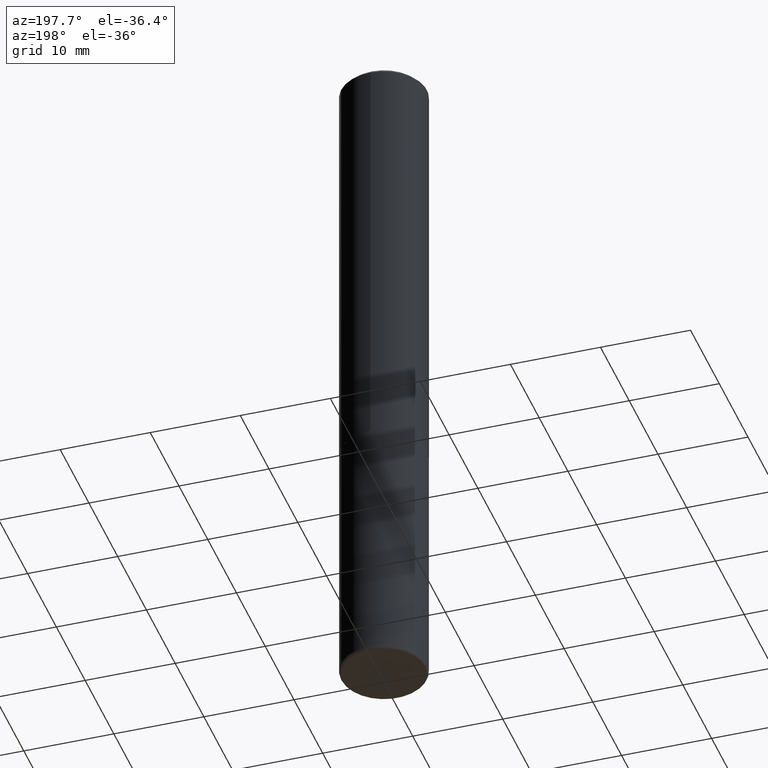
[diagram: clean part render]
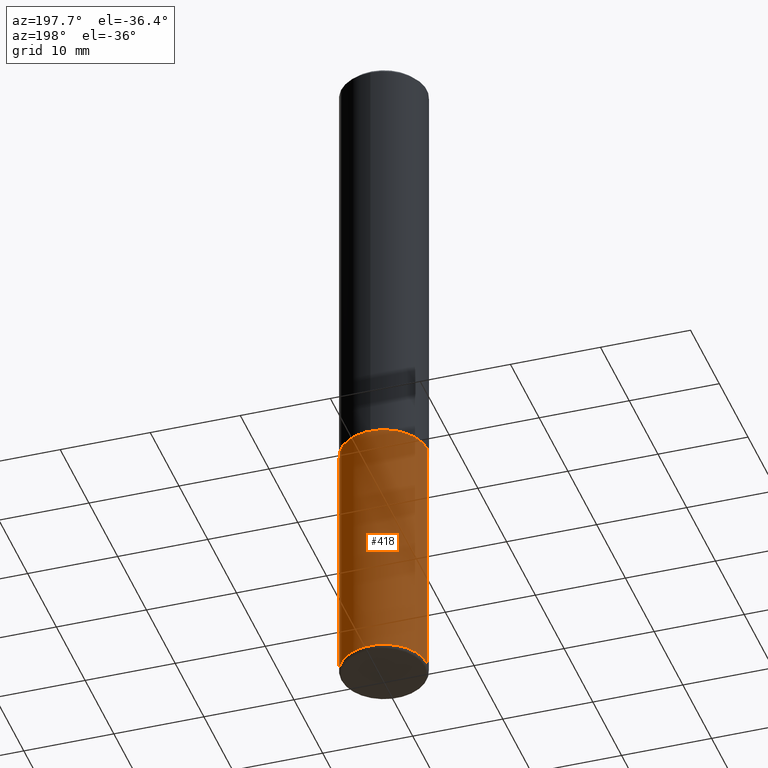
[diagram: same view with one face highlighted and labeled with its STEP entity id]
A machine part, auxiliary view. The second image highlights one B-rep face of the part: STEP entity #418.
In plain terms, the highlighted cylindrical surface (partial cylindrical patch) has radius 4.7625 mm, axis along (-0, 0, 1).
Its self-contained STEP definition (entity closure, byte-faithful):
#5 = CYLINDRICAL_SURFACE ( 'NONE', #243, 0.1874999999999999722 ) ;
#16 = EDGE_CURVE ( 'NONE', #223, #51, #372, .T. ) ;
#22 = FACE_OUTER_BOUND ( 'NONE', #341, .T. ) ;
#38 = DIRECTION ( 'NONE',  ( 1.000000000000000000, -6.982962677686266711E-15, 0.000000000000000000 ) ) ;
#39 = EDGE_CURVE ( 'NONE', #221, #338, #128, .T. ) ;
#51 = VERTEX_POINT ( 'NONE', #125 ) ;
#52 = CARTESIAN_POINT ( 'NONE',  ( 7.299724386462632472E-29, -1.042207179644678967E-14, -2.984999999999999876 ) ) ;
#53 = CARTESIAN_POINT ( 'NONE',  ( -0.1874999999999999722, 1.332267629550187651E-15, -9.223003294227946589E-30 ) ) ;
#75 = AXIS2_PLACEMENT_3D ( 'NONE', #52, #284, #346 ) ;
#82 = ORIENTED_EDGE ( 'NONE', *, *, #39, .T. ) ;
#109 = DIRECTION ( 'NONE',  ( -2.445468806185136597E-29, 3.491481338843145583E-15, 1.000000000000000000 ) ) ;
#119 = EDGE_CURVE ( 'NONE', #223, #221, #315, .T. ) ;
#125 = CARTESIAN_POINT ( 'NONE',  ( 0.1875000000000000278, -7.855833012397073715E-15, -1.875000000000000000 ) ) ;
#128 = LINE ( 'NONE', #53, #182 ) ;
#130 = AXIS2_PLACEMENT_3D ( 'NONE', #323, #393, #38 ) ;
#157 = DIRECTION ( 'NONE',  ( -2.445468806185136877E-29, 3.491481338843145188E-15, 1.000000000000000000 ) ) ;
#162 = VECTOR ( 'NONE', #157, 39.37007874015748143 ) ;
#173 = CARTESIAN_POINT ( 'NONE',  ( -0.1875000000000000278, -7.152032023838655550E-15, -1.875000000000000000 ) ) ;
#181 = ORIENTED_EDGE ( 'NONE', *, *, #16, .F. ) ;
#182 = VECTOR ( 'NONE', #296, 39.37007874015748143 ) ;
#208 = ORIENTED_EDGE ( 'NONE', *, *, #241, .F. ) ;
#221 = VERTEX_POINT ( 'NONE', #288 ) ;
#223 = VERTEX_POINT ( 'NONE', #257 ) ;
#241 = EDGE_CURVE ( 'NONE', #51, #338, #265, .T. ) ;
#243 = AXIS2_PLACEMENT_3D ( 'NONE', #300, #109, #329 ) ;
#257 = CARTESIAN_POINT ( 'NONE',  ( 0.1874999999999999167, -1.173137729851296152E-14, -2.984999999999999876 ) ) ;
#265 = CIRCLE ( 'NONE', #130, 0.1875000000000000278 ) ;
#284 = DIRECTION ( 'NONE',  ( -2.445468806185136597E-29, 3.491481338843145583E-15, 1.000000000000000000 ) ) ;
#288 = CARTESIAN_POINT ( 'NONE',  ( -0.1874999999999999167, -9.089804166896601820E-15, -2.984999999999999876 ) ) ;
#296 = DIRECTION ( 'NONE',  ( -2.445468806185136877E-29, 3.491481338843145188E-15, 1.000000000000000000 ) ) ;
#300 = CARTESIAN_POINT ( 'NONE',  ( 0.000000000000000000, 0.000000000000000000, 0.000000000000000000 ) ) ;
#307 = ORIENTED_EDGE ( 'NONE', *, *, #119, .T. ) ;
#315 = CIRCLE ( 'NONE', #75, 0.1874999999999999722 ) ;
#323 = CARTESIAN_POINT ( 'NONE',  ( 4.585254011597131119E-29, -6.546527510330898707E-15, -1.875000000000000000 ) ) ;
#329 = DIRECTION ( 'NONE',  ( 1.000000000000000000, -6.982962677686266711E-15, 4.876176775795935793E-29 ) ) ;
#338 = VERTEX_POINT ( 'NONE', #173 ) ;
#341 = EDGE_LOOP ( 'NONE', ( #307, #82, #208, #181 ) ) ;
#346 = DIRECTION ( 'NONE',  ( 1.000000000000000000, -6.982962677686263555E-15, 0.000000000000000000 ) ) ;
#372 = LINE ( 'NONE', #414, #162 ) ;
#393 = DIRECTION ( 'NONE',  ( -2.445468806185136597E-29, 3.491481338843145583E-15, 1.000000000000000000 ) ) ;
#414 = CARTESIAN_POINT ( 'NONE',  ( 0.1874999999999999722, -1.309305502066174811E-15, 9.142831454617378210E-30 ) ) ;
#418 = ADVANCED_FACE ( 'NONE', ( #22 ), #5, .T. ) ;